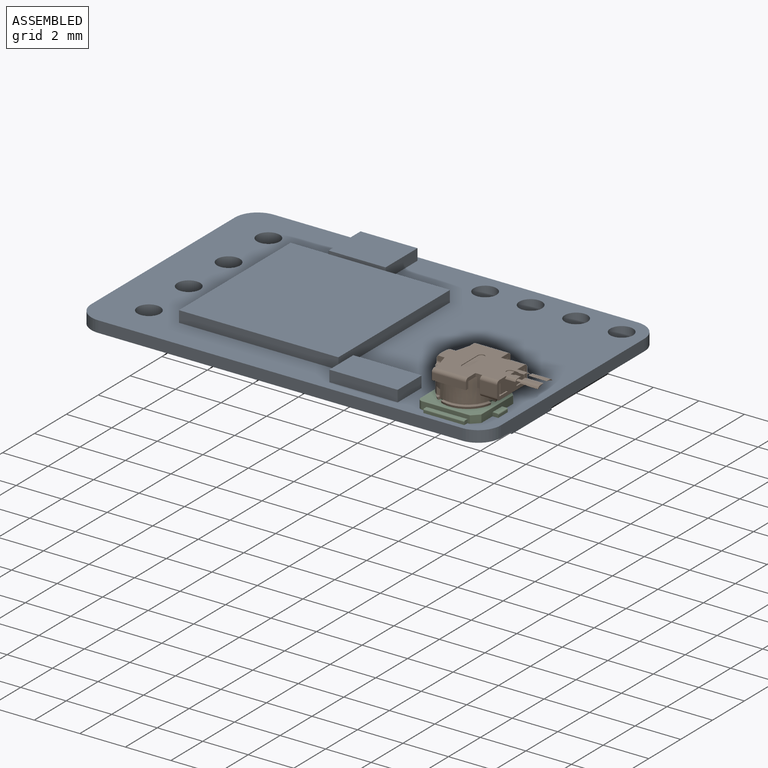
[diagram: assembled view]
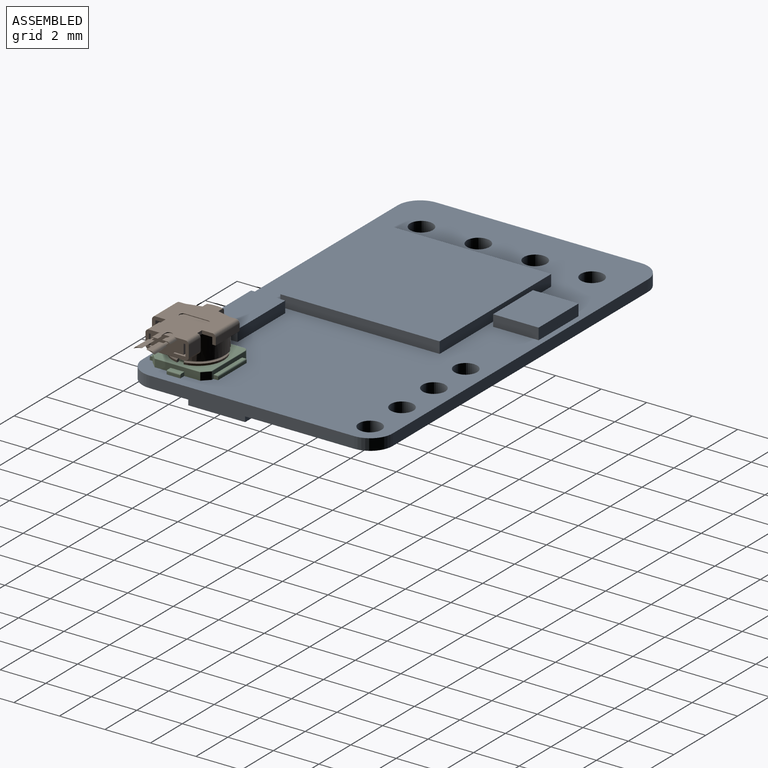
[diagram: assembled view, second angle]
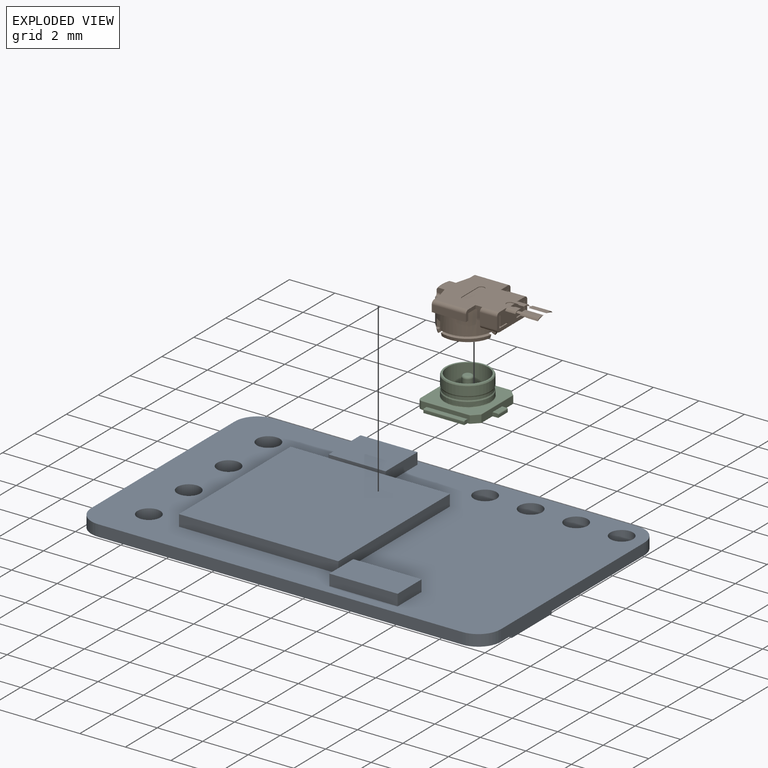
[diagram: exploded view]
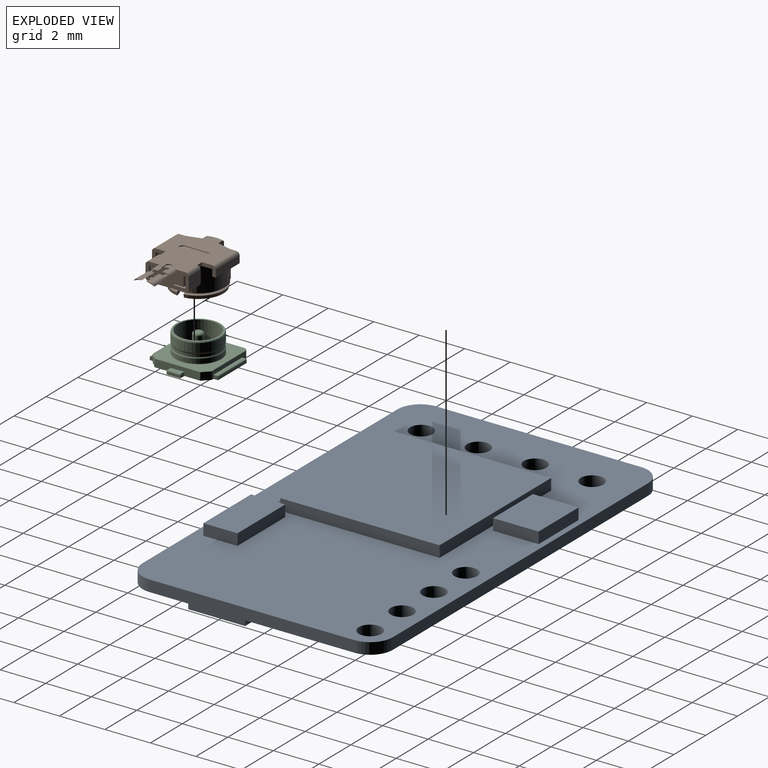
[diagram: exploded view, second angle]
ASSEMBLY  parts=3 mates=2
PART A: 53 faces, bbox 18x11x1.5 mm
  f0: plane 9x0.5mm, normal (-1,0,0), area 4.5mm2, adj f1,f15,f16,f17
  f1: cylinder r=1mm len=1mm, axis (0,0,-1), area 0.8mm2, adj f0,f2,f16,f17
  f2: plane 16x0.5mm, normal (0,-1,0), area 8mm2, adj f1,f3,f16,f17
  f3: cylinder r=1mm len=1mm, axis (0,0,-1), area 0.8mm2, adj f2,f4,f16,f17
  f4: plane 9x0.5mm, normal (1,0,0), area 4.5mm2, adj f3,f5,f16,f17
  f5: cylinder r=1mm len=1mm, axis (0,0,-1), area 0.8mm2, adj f4,f6,f16,f17
  f6: plane 16x0.5mm, normal (0,1,0), area 8mm2, adj f5,f15,f16,f17
  f7: cylinder r=0.5mm len=1mm, axis (0,0,-1), area 1.6mm2, adj f16,f17
  f8: cylinder r=0.5mm len=1mm, axis (0,0,-1), area 1.6mm2, adj f16,f17
  f9: cylinder r=0.5mm len=1mm, axis (0,0,-1), area 1.6mm2, adj f16,f17
  f10: cylinder r=0.5mm len=1mm, axis (0,0,-1), area 1.6mm2, adj f16,f17
  f11: cylinder r=0.5mm len=1mm, axis (0,0,-1), area 1.6mm2, adj f16,f17
  f12: cylinder r=0.5mm len=1mm, axis (0,0,-1), area 1.6mm2, adj f16,f17
  f13: cylinder r=0.5mm len=1mm, axis (0,0,-1), area 1.6mm2, adj f16,f17
  f14: cylinder r=0.5mm len=1mm, axis (0,0,-1), area 1.6mm2, adj f16,f17
  f15: cylinder r=1mm len=1mm, axis (0,0,-1), area 0.8mm2, adj f0,f6,f16,f17
  f16: plane 18x11mm, normal (0,0,1), area 132.4mm2, adj f0,f1,f2,f3,f4,f5,f6,f7
  f17: plane 18x11mm, normal (0,0,-1), area 141.6mm2, adj f0,f1,f2,f3,f4,f5,f6,f7
  f18: plane 7x7mm, normal (0,0,1), area 49mm2, adj f19,f20,f21,f22
  f19: plane 7x0.5mm, normal (0,-1,0), area 3.5mm2, adj f16,f18,f20,f22
  f20: plane 7x0.5mm, normal (-1,0,0), area 3.5mm2, adj f16,f18,f19,f21
  f21: plane 7x0.5mm, normal (0,1,0), area 3.5mm2, adj f16,f18,f20,f22
  f22: plane 7x0.5mm, normal (1,0,0), area 3.5mm2, adj f16,f18,f19,f21
  f23: plane 2.5x2mm, normal (0,0,1), area 5mm2, adj f24,f25,f26,f27
  f24: plane 2x0.5mm, normal (1,0,0), area 1mm2, adj f16,f23,f25,f27
  f25: plane 2.5x0.5mm, normal (0,-1,0), area 1.2mm2, adj f16,f23,f24,f26
  f26: plane 2x0.5mm, normal (-1,0,0), area 1mm2, adj f16,f23,f25,f27
  f27: plane 2.5x0.5mm, normal (0,1,0), area 1.2mm2, adj f16,f23,f24,f26
  f28: plane 3x1.5mm, normal (0,0,1), area 4.5mm2, adj f29,f30,f31,f32
  f29: plane 1.5x0.5mm, normal (1,0,0), area 0.7mm2, adj f16,f28,f30,f32
  f30: plane 3x0.5mm, normal (0,-1,0), area 1.5mm2, adj f16,f28,f29,f31
  f31: plane 1.5x0.5mm, normal (-1,0,0), area 0.7mm2, adj f16,f28,f30,f32
  f32: plane 3x0.5mm, normal (0,1,0), area 1.5mm2, adj f16,f28,f29,f31
  f33: plane 6x0.5mm, normal (0,-1,0), area 3mm2, adj f17,f34,f36,f37
  f34: plane 6x0.5mm, normal (-1,0,0), area 3mm2, adj f17,f33,f35,f37
  f35: plane 6x0.5mm, normal (0,1,0), area 3mm2, adj f17,f34,f36,f37
  f36: plane 6x0.5mm, normal (1,0,0), area 3mm2, adj f17,f33,f35,f37
  f37: plane 6x6mm, normal (0,0,-1), area 36mm2, adj f33,f34,f35,f36
  f38: plane 2x0.5mm, normal (0,-1,0), area 1mm2, adj f17,f39,f41,f42
  f39: plane 2.5x0.5mm, normal (-1,0,0), area 1.3mm2, adj f17,f38,f40,f42
  f40: plane 2x0.5mm, normal (0,1,0), area 1mm2, adj f17,f39,f41,f42
  f41: plane 2.5x0.5mm, normal (1,0,0), area 1.3mm2, adj f17,f38,f40,f42
  f42: plane 2.5x2mm, normal (0,0,-1), area 5mm2, adj f38,f39,f40,f41
  f43: plane 2x0.5mm, normal (0,-1,0), area 1mm2, adj f17,f44,f46,f47
  f44: plane 3x0.5mm, normal (-1,0,0), area 1.5mm2, adj f17,f43,f45,f47
  f45: plane 2x0.5mm, normal (0,1,0), area 1mm2, adj f17,f44,f46,f47
  f46: plane 3x0.5mm, normal (1,0,0), area 1.5mm2, adj f17,f43,f45,f47
  f47: plane 3x2mm, normal (0,0,-1), area 6mm2, adj f43,f44,f45,f46
  f48: plane 2.3x0.5mm, normal (0,-1,0), area 1.1mm2, adj f17,f49,f51,f52
  f49: plane 1x0.5mm, normal (-1,0,0), area 0.5mm2, adj f17,f48,f50,f52
  f50: plane 2.3x0.5mm, normal (0,1,0), area 1.1mm2, adj f17,f49,f51,f52
  f51: plane 1x0.5mm, normal (1,0,0), area 0.5mm2, adj f17,f48,f50,f52
  f52: plane 2.3x1mm, normal (0,0,-1), area 2.3mm2, adj f48,f49,f50,f51
PART B: 213 faces, bbox 4.7x1.5x2.8 mm
  f0: plane 0.25x0.05mm, normal (0,-0.71,0.71), area 0mm2, adj f1,f2,f6,f8
  f1: plane 0.55x0.11mm, normal (0,-0.71,-0.71), area 0.1mm2, adj f0,f6,f7,f8
  f2: plane 0.55x0.11mm, normal (0,0.6,0.8), area 0.1mm2, adj f0,f6,f8,f9
  f3: plane 0.55x0.11mm, normal (0,-0.71,0.71), area 0.1mm2, adj f4,f10,f11,f12
  f4: plane 0.25x0.05mm, normal (0,-0.71,-0.71), area 0mm2, adj f3,f5,f10,f12
  f5: plane 0.55x0.11mm, normal (0,0.6,-0.8), area 0.1mm2, adj f4,f10,f12,f13
  f6: cylinder r=0.15mm len=0.2mm, axis (0,0.71,0.71), area 0mm2, adj f0,f1,f2,f9,f18
  f7: cylinder r=0.06mm len=0.55mm, axis (-1,0,0), area 0mm2, adj f1,f18,f19,f20
  f8: cylinder r=0.15mm len=0.2mm, axis (0,0.71,0.71), area 0mm2, adj f0,f1,f2,f9,f20
  f9: plane 0.6x0.55mm, normal (0,-0.21,0.98), area 0.3mm2, adj f2,f6,f8,f17,f18,f20
  f10: cylinder r=0.15mm len=0.2mm, axis (0,0.71,-0.71), area 0mm2, adj f3,f4,f5,f13,f23
  f11: cylinder r=0.06mm len=0.55mm, axis (-1,0,0), area 0mm2, adj f3,f23,f24,f25
  f12: cylinder r=0.15mm len=0.2mm, axis (0,0.71,-0.71), area 0mm2, adj f3,f4,f5,f13,f25
  f13: plane 0.6x0.55mm, normal (0,-0.21,-0.98), area 0.3mm2, adj f5,f10,f12,f15,f23,f25
  f14: plane 0.1x0.06mm, normal (-1,0,0), area 0mm2, adj f22,f28,f29,f30
  f15: cylinder r=0.1mm len=0.55mm, axis (-1,0,0), area 0.1mm2, adj f13,f23,f25,f30
  f16: plane 0.1x0.06mm, normal (-1,0,0), area 0mm2, adj f21,f26,f27,f31
  f17: cylinder r=0.1mm len=0.55mm, axis (-1,0,0), area 0.1mm2, adj f9,f18,f20,f31
  f18: plane 0.74x0.23mm, normal (-1,0,0), area 0.1mm2, adj f6,f7,f9,f17,f19,f31,f32,f33
  f19: plane 0.59x0.55mm, normal (0,0.21,-0.98), area 0.3mm2, adj f7,f18,f20,f33
  f20: plane 0.74x0.23mm, normal (1,0,0), area 0.1mm2, adj f7,f8,f9,f17,f19,f21,f31,f33
  f21: plane 0.1x0.1mm, normal (0,0,1), area 0mm2, adj f16,f20,f26,f31,f33
  f22: plane 0.1x0.1mm, normal (0,0,-1), area 0mm2, adj f14,f23,f29,f30,f33
  f23: plane 0.74x0.23mm, normal (1,0,0), area 0.1mm2, adj f10,f11,f13,f15,f22,f24,f30,f33
  f24: plane 0.59x0.55mm, normal (0,0.21,0.98), area 0.3mm2, adj f11,f23,f25,f33
  f25: plane 0.74x0.23mm, normal (-1,0,0), area 0.1mm2, adj f11,f12,f13,f15,f24,f30,f33,f34
  f26: plane 0.07x0.06mm, normal (0,1,0), area 0mm2, adj f16,f21,f27,f38
  f27: plane 0.1x0.07mm, normal (0,0,-1), area 0mm2, adj f16,f26,f31,f38
  f28: plane 0.1x0.07mm, normal (0,0,1), area 0mm2, adj f14,f29,f30,f38
  f29: plane 0.07x0.06mm, normal (0,1,0), area 0mm2, adj f14,f22,f28,f38
  f30: plane 0.67x0.16mm, normal (0,-1,0), area 0.1mm2, adj f14,f15,f22,f23,f25,f28,f34,f35
  f31: plane 0.67x0.16mm, normal (0,-1,0), area 0.1mm2, adj f16,f17,f18,f20,f21,f27,f32,f38
  f32: plane 0.1x0.03mm, normal (0,0,1), area 0mm2, adj f18,f31,f33,f42
  f33: plane 0.6x0.6mm, normal (0,-1,0), area 0.4mm2, adj f18,f19,f20,f21,f22,f23,f24,f25
  f34: plane 0.1x0.03mm, normal (0,0,-1), area 0mm2, adj f25,f30,f33,f42
  f35: cylinder r=0.05mm len=0.85mm, axis (0,-1,0), area 0.1mm2, adj f30,f36,f42,f43
  f36: plane 0.85x0.5mm, normal (0,0,1), area 0.4mm2, adj f30,f35,f37,f43
  f37: cylinder r=0.05mm len=0.85mm, axis (0,-1,0), area 0.1mm2, adj f30,f36,f38,f43
  f38: plane 0.85x0.8mm, normal (-1,0,0), area 0.6mm2, adj f26,f27,f28,f29,f30,f31,f33,f37
  f39: cylinder r=0.05mm len=0.85mm, axis (0,-1,0), area 0.1mm2, adj f31,f38,f40,f43
  f40: plane 0.85x0.5mm, normal (0,0,-1), area 0.4mm2, adj f31,f39,f41,f43
  f41: cylinder r=0.05mm len=0.85mm, axis (0,-1,0), area 0.1mm2, adj f31,f40,f42,f43
  f42: plane 0.85x0.8mm, normal (1,0,0), area 0.6mm2, adj f30,f31,f32,f33,f34,f35,f41,f43
  f43: plane 1.25x1.25mm, normal (0,-1,0), area 0.7mm2, adj f35,f36,f37,f38,f39,f40,f41,f42
  f44: cone r=0mm half-angle=45deg, axis (0,1,0), area 0.9mm2, adj f43,f45
  f45: cylinder r=0.78mm len=1.55mm, axis (0,-1,0), area 2.9mm2, adj f44,f50,f51
  f46: plane 0.6x0.15mm, normal (0,-1,0), area 0.1mm2, adj f47,f57
  f47: cylinder r=0.48mm len=0.6mm, axis (0,1,0), area 0.1mm2, adj f46,f48,f57
  f48: plane 0.8x0.16mm, normal (0,-1,0), area 0mm2, adj f47,f49,f57
  f49: cylinder r=0.73mm len=0.8mm, axis (0,-1,0), area 0.1mm2, adj f48,f50,f57
  f50: plane 2.05x1.96mm, normal (0,-1,0), area 1.2mm2, adj f45,f49,f51,f57,f63
  f51: cylinder r=0.2mm len=0.3mm, axis (-1,0,0), area 0.1mm2, adj f45,f50,f63
  f52: torus R=1.08mm, axis (0,1,0), area 0.1mm2, adj f53,f78,f79,f80
  f53: cone r=0mm half-angle=71.9deg, axis (0,-1,0), area 0.2mm2, adj f52,f54,f78,f80
  f54: cone r=0mm half-angle=14.4deg, axis (0,1,0), area 0.3mm2, adj f53,f55,f78,f80
  f55: cone r=0mm half-angle=71.9deg, axis (0,-1,0), area 0.2mm2, adj f54,f56,f78,f80
  f56: torus R=1.08mm, axis (0,-1,0), area 0.8mm2, adj f55,f57,f78,f80
  f57: cylinder r=1.03mm len=2.05mm, axis (0,-1,0), area 1.6mm2, adj f46,f47,f48,f49,f50,f56,f61,f63
  f58: cone r=0mm half-angle=71.9deg, axis (0,-1,0), area 0.2mm2, adj f59,f62,f82,f86
  f59: cone r=0mm half-angle=14.4deg, axis (0,1,0), area 0.3mm2, adj f58,f60,f82,f86
  f60: cone r=0mm half-angle=71.9deg, axis (0,-1,0), area 0.2mm2, adj f59,f61,f82,f86
  f61: torus R=1.08mm, axis (0,1,0), area 0.8mm2, adj f57,f60,f63,f82,f86
  f62: revolved ~2.14x2.14mm, area 0.6mm2, adj f58,f82,f85,f86
  f63: cylinder r=1.03mm len=2.05mm, axis (0,-1,0), area 1.6mm2, adj f50,f51,f57,f61,f64,f86,f87,f88
  f64: torus R=1.08mm, axis (0,-1,0), area 0.8mm2, adj f57,f63,f65,f76,f88
  f65: cone r=0mm half-angle=71.9deg, axis (0,-1,0), area 0.2mm2, adj f64,f66,f76,f88
  f66: cone r=0mm half-angle=14.4deg, axis (0,1,0), area 0.3mm2, adj f65,f67,f76,f88
  f67: cone r=0mm half-angle=71.9deg, axis (0,-1,0), area 0.2mm2, adj f66,f68,f76,f88
  f68: torus R=1.08mm, axis (0,1,0), area 0.1mm2, adj f67,f76,f88,f89
  f69: plane 0.15x0.05mm, normal (0,0,1), area 0mm2, adj f92,f100,f101,f103
  f70: plane 0.15x0.05mm, normal (0,0,-1), area 0mm2, adj f95,f96,f97,f124
  f71: plane 0.51x0.15mm, normal (0,1,0), area 0.1mm2, adj f73,f126
  f72: plane 0.51x0.15mm, normal (0,-1,0), area 0.1mm2, adj f73,f126
  f73: cylinder r=0.33mm len=0.51mm, axis (0,1,0), area 0.1mm2, adj f71,f72,f126
  f74: cylinder r=0.1mm len=0.18mm, axis (-1,0,0), area 0mm2, adj f114,f117,f118,f126
  f75: cylinder r=0.1mm len=0.17mm, axis (-1,0,0), area 0mm2, adj f109,f113,f126
  f76: plane 0.6x0.24mm, normal (-0.87,0,-0.5), area 0.1mm2, adj f57,f64,f65,f66,f67,f68,f77,f89
  f77: plane 0.34x0.28mm, normal (0,-1,0), area 0mm2, adj f57,f76,f78,f126
  f78: plane 0.6x0.24mm, normal (0.87,0,0.5), area 0.1mm2, adj f52,f53,f54,f55,f56,f57,f77,f79
  f79: cone r=0mm half-angle=71.9deg, axis (0,1,0), area 0.2mm2, adj f52,f78,f80,f126
  f80: plane 0.6x0.24mm, normal (0.87,0,-0.5), area 0.1mm2, adj f52,f53,f54,f55,f56,f57,f79,f81
  f81: plane 0.34x0.28mm, normal (0,-1,0), area 0mm2, adj f57,f80,f82,f126
  f82: plane 0.6x0.24mm, normal (-0.87,0,0.5), area 0.1mm2, adj f57,f58,f59,f60,f61,f62,f81,f85
  f83: cone r=0mm half-angle=33deg, axis (0,-1,0), area 0mm2, adj f84,f126,f128
  f84: plane 0.47x0.1mm, normal (0,1,0), area 0mm2, adj f83,f126,f128
  f85: cone r=0mm half-angle=71.9deg, axis (0,1,0), area 0.2mm2, adj f62,f82,f86,f126,f128
  f86: plane 0.6x0.28mm, normal (0,0,1), area 0.1mm2, adj f58,f59,f60,f61,f62,f63,f85,f87
  f87: plane 0.3x0.16mm, normal (0,-1,0), area 0mm2, adj f63,f86,f88,f128
  f88: plane 0.6x0.28mm, normal (0,0,-1), area 0.1mm2, adj f63,f64,f65,f66,f67,f68,f87,f89
  f89: cone r=0mm half-angle=71.9deg, axis (0,1,0), area 0.2mm2, adj f68,f76,f88,f126,f128
  f90: plane 0.47x0.1mm, normal (0,1,0), area 0mm2, adj f91,f126,f128
  f91: cone r=0mm half-angle=33deg, axis (0,-1,0), area 0mm2, adj f90,f126,f128
  f92: plane 0.68x0.28mm, normal (0,-1,0), area 0mm2, adj f69,f93,f100,f103,f104,f128
  f93: plane 0.61x0.45mm, normal (0,0,1), area 0.3mm2, adj f92,f99,f100,f128
  f94: plane 0.61x0.45mm, normal (0,0,-1), area 0.3mm2, adj f95,f97,f98,f128
  f95: plane 0.68x0.28mm, normal (0,-1,0), area 0mm2, adj f70,f94,f97,f123,f124,f128
  f96: cylinder r=0.15mm len=0.14mm, axis (-1,0,0), area 0mm2, adj f70,f97,f124,f132
  f97: plane 0.45x0.4mm, normal (1,0,0), area 0.1mm2, adj f70,f94,f95,f96,f98,f132
  f98: plane 0.61x0.4mm, normal (0,-1,0), area 0.2mm2, adj f94,f97,f128,f132
  f99: plane 0.61x0.4mm, normal (0,-1,0), area 0.2mm2, adj f93,f100,f128,f132
  f100: plane 0.45x0.4mm, normal (1,0,0), area 0.1mm2, adj f69,f92,f93,f99,f101,f132
  f101: cylinder r=0.15mm len=0.14mm, axis (-1,0,0), area 0mm2, adj f69,f100,f103,f132
  f102: plane 0.21x0.05mm, normal (-1,0,0), area 0mm2, adj f132,f135,f136,f137
  f103: plane 0.45x0.42mm, normal (-1,0,0), area 0.1mm2, adj f69,f92,f101,f104,f132,f137
  f104: plane 0.68x0.45mm, normal (0,0,-1), area 0.3mm2, adj f92,f103,f128,f137
  f105: plane 1.5x0.3mm, normal (0,0,1), area 0.5mm2, adj f106,f149,f150,f151
  f106: plane 1.5x0.15mm, normal (0,-1,0), area 0.2mm2, adj f105,f107,f149,f151
  f107: plane 1.5x0.3mm, normal (0,0,-1), area 0.5mm2, adj f106,f139,f149,f151
  f108: plane 0.18x0.13mm, normal (0,1,0), area 0mm2, adj f109,f126,f151,f152
  f109: plane 0.45x0.42mm, normal (0,0.94,-0.34), area 0.1mm2, adj f75,f108,f110,f126,f152
  f110: cylinder r=1.03mm len=0.32mm, axis (0,-1,0), area 0mm2, adj f109,f111,f152
  f111: plane 0.44x0.31mm, normal (0,1,0), area 0.1mm2, adj f110,f112,f152,f153
  f112: cylinder r=1.03mm len=0.12mm, axis (0,-1,0), area 0mm2, adj f111,f113,f153
  f113: cylinder r=0.1mm len=0.21mm, axis (-1,0,0), area 0mm2, adj f75,f112,f126,f153
  f114: cylinder r=0.1mm len=0.2mm, axis (-1,0,0), area 0mm2, adj f74,f115,f126,f155
  f115: cylinder r=1.03mm len=0.1mm, axis (0,-1,0), area 0mm2, adj f114,f116,f155
  f116: plane 0.44x0.31mm, normal (0,1,0), area 0.1mm2, adj f115,f117,f155,f156
  f117: cylinder r=1.03mm len=0.34mm, axis (0,-1,0), area 0mm2, adj f74,f116,f118,f156
  f118: plane 0.45x0.41mm, normal (0,0.94,0.34), area 0.1mm2, adj f74,f117,f119,f126,f156
  f119: plane 0.18x0.13mm, normal (0,1,0), area 0mm2, adj f118,f126,f156,f157
  f120: plane 1.5x0.3mm, normal (0,0,-1), area 0.5mm2, adj f121,f157,f158,f159
  f121: plane 1.5x0.15mm, normal (0,-1,0), area 0.2mm2, adj f120,f127,f157,f159
  f122: plane 1.3x0.3mm, normal (0,1,0), area 0.4mm2, adj f162,f163,f164,f165
  f123: plane 0.68x0.45mm, normal (0,0,1), area 0.3mm2, adj f95,f124,f128,f171
  f124: plane 0.45x0.42mm, normal (-1,0,0), area 0.1mm2, adj f70,f95,f96,f123,f132,f171
  f125: plane 0.21x0.05mm, normal (-1,0,0), area 0mm2, adj f132,f169,f170,f171
  f126: cylinder r=1.18mm len=2.35mm, axis (0,-1,0), area 3.6mm2, adj f71,f72,f73,f74,f75,f76,f77,f78
  f127: plane 1.5x0.3mm, normal (0,0,1), area 0.5mm2, adj f121,f157,f159,f173
  f128: cylinder r=1.18mm len=2.35mm, axis (0,-1,0), area 3.2mm2, adj f83,f84,f85,f86,f87,f88,f89,f90
  f129: plane 0.8x0.15mm, normal (-1,0,0), area 0.1mm2, adj f130,f160,f172,f176,f177,f178
  f130: plane 0.77x0.2mm, normal (-0.97,0,0.25), area 0.1mm2, adj f129,f132,f170,f179,f180
  f131: plane 0.13x0.06mm, normal (-1,0,0), area 0mm2, adj f132,f180,f181,f182
  f132: cylinder r=0.2mm len=0.74mm, axis (-1,0,0), area 0.2mm2, adj f96,f97,f98,f99,f100,f101,f102,f103
  f133: plane 0.77x0.2mm, normal (-0.97,0,-0.25), area 0.1mm2, adj f132,f134,f135,f182,f183
  f134: plane 0.8x0.15mm, normal (-1,0,0), area 0.1mm2, adj f133,f140,f141,f147,f148,f184
  f135: plane 0.75x0.71mm, normal (0,1,0), area 0.5mm2, adj f102,f132,f133,f136,f140,f210
  f136: cylinder r=0.33mm len=0.05mm, axis (-1,0,0), area 0mm2, adj f102,f135,f137,f210
  f137: plane 1.03x0.57mm, normal (0,-1,0), area 0.2mm2, adj f102,f103,f104,f128,f132,f136,f138,f210
  f138: plane 1.03x0.45mm, normal (0,0,1), area 0.5mm2, adj f128,f137,f139,f210
  f139: plane 2.55x0.53mm, normal (0,-1,0), area 0.3mm2, adj f107,f126,f128,f138,f140,f148,f149,f151
  f140: plane 0.75x0.5mm, normal (0,0,-1), area 0.4mm2, adj f134,f135,f139,f210
  f141: plane 0.75x0.5mm, normal (0,0,1), area 0.4mm2, adj f134,f147,f184,f210
  f142: cylinder r=0.15mm len=0.4mm, axis (1,0,0), area 0.1mm2, adj f143,f189,f190,f191
  f143: cylinder r=0.15mm len=0.26mm, axis (1,0,0.04), area 0mm2, adj f142,f144,f188,f191
  f144: cylinder r=0.15mm len=0.15mm, axis (1,0,0), area 0mm2, adj f143,f187,f191,f192
  f145: plane 0.3x0.25mm, normal (0,1,0), area 0.1mm2, adj f161,f196,f197,f210
  f146: cylinder r=0.15mm len=0.45mm, axis (1,0,0), area 0.1mm2, adj f185,f194,f199,f210
  f147: cylinder r=0.15mm len=0.75mm, axis (-1,0,0), area 0.2mm2, adj f134,f141,f199,f210
  f148: plane 0.3x0.15mm, normal (0,0,1), area 0mm2, adj f134,f139,f149,f199
  f149: plane 0.6x0.45mm, normal (1,0,0), area 0.1mm2, adj f105,f106,f107,f139,f148,f150,f199
  f150: cylinder r=0.15mm len=1.5mm, axis (-1,0,0), area 0.4mm2, adj f105,f149,f151,f199
  f151: plane 0.45x0.42mm, normal (-1,0,0), area 0.1mm2, adj f105,f106,f107,f108,f139,f150,f152,f199
  f152: plane 0.63x0.3mm, normal (-0.97,0,0.26), area 0.2mm2, adj f108,f109,f110,f111,f151,f153,f199
  f153: plane 0.37x0.31mm, normal (0,0,1), area 0.1mm2, adj f111,f112,f113,f126,f152,f154,f199
  f154: torus R=1.07mm, axis (0,-1,0), area 0.1mm2, adj f126,f153,f155,f199
  f155: plane 0.37x0.31mm, normal (0,0,-1), area 0.1mm2, adj f114,f115,f116,f126,f154,f156,f199
  f156: plane 0.63x0.3mm, normal (-0.97,0,-0.26), area 0.2mm2, adj f116,f117,f118,f119,f155,f157,f199
  f157: plane 0.45x0.42mm, normal (-1,0,0), area 0.1mm2, adj f119,f120,f121,f127,f156,f158,f173,f199
  f158: cylinder r=0.15mm len=1.5mm, axis (-1,0,0), area 0.4mm2, adj f120,f157,f159,f199
  f159: plane 0.6x0.45mm, normal (1,0,0), area 0.1mm2, adj f120,f121,f127,f158,f160,f173,f199
  f160: plane 0.3x0.15mm, normal (0,0,-1), area 0mm2, adj f129,f159,f173,f199
  f161: cylinder r=0.15mm len=0.3mm, axis (0,1,0), area 0mm2, adj f145,f196,f197,f199
  f162: cylinder r=0.15mm len=0.3mm, axis (0,1,0), area 0mm2, adj f122,f163,f165,f199
  f163: plane 1x0.03mm, normal (1,0,0), area 0mm2, adj f122,f162,f164,f199
  f164: cylinder r=0.15mm len=0.3mm, axis (0,1,0), area 0mm2, adj f122,f163,f165,f199
  f165: plane 1x0.03mm, normal (-1,0,0), area 0mm2, adj f122,f162,f164,f199
  f166: cylinder r=0.15mm len=0.4mm, axis (-1,0,0), area 0.1mm2, adj f167,f201,f202,f203
  f167: cylinder r=0.15mm len=0.26mm, axis (-1,0,0.04), area 0mm2, adj f166,f168,f201,f204
  f168: cylinder r=0.15mm len=0.15mm, axis (-1,0,0), area 0mm2, adj f167,f201,f205,f206
  f169: cylinder r=0.33mm len=0.05mm, axis (-1,0,0), area 0mm2, adj f125,f170,f171,f210
  f170: plane 0.75x0.71mm, normal (0,1,0), area 0.5mm2, adj f125,f130,f132,f169,f172,f210
  f171: plane 1.03x0.57mm, normal (0,-1,0), area 0.2mm2, adj f123,f124,f125,f128,f132,f169,f174,f210
  f172: plane 0.75x0.5mm, normal (0,0,1), area 0.4mm2, adj f129,f170,f173,f210
  f173: plane 2.55x0.53mm, normal (0,-1,0), area 0.3mm2, adj f126,f127,f128,f157,f159,f160,f172,f174
  f174: plane 1.03x0.45mm, normal (0,0,-1), area 0.5mm2, adj f128,f171,f173,f210
  f175: cylinder r=0.15mm len=0.45mm, axis (1,0,0), area 0.1mm2, adj f199,f208,f209,f210
  f176: cylinder r=0.15mm len=0.75mm, axis (-1,0,0), area 0.2mm2, adj f129,f177,f199,f210
  f177: plane 0.75x0.5mm, normal (0,0,-1), area 0.4mm2, adj f129,f176,f178,f210
  f178: cylinder r=0.15mm len=0.75mm, axis (-1,0,0), area 0.2mm2, adj f129,f177,f179,f210
  f179: plane 0.77x0.75mm, normal (0,-1,0), area 0.5mm2, adj f130,f178,f180,f210
  f180: plane 0.55x0.13mm, normal (0,0,1), area 0.1mm2, adj f130,f131,f132,f179,f181,f210
  f181: cylinder r=0.33mm len=0.06mm, axis (-1,0,0), area 0mm2, adj f131,f180,f182,f210
  f182: plane 0.55x0.13mm, normal (0,0,-1), area 0.1mm2, adj f131,f132,f133,f181,f183,f210
  f183: plane 0.77x0.75mm, normal (0,-1,0), area 0.5mm2, adj f133,f182,f184,f210
  f184: cylinder r=0.15mm len=0.75mm, axis (-1,0,0), area 0.2mm2, adj f134,f141,f183,f210
  f185: cylinder r=0.5mm len=0.45mm, axis (1,0,0), area 0mm2, adj f146,f194,f210,f212
  f186: cylinder r=0.15mm len=0.2mm, axis (-1,0,0), area 0mm2, adj f192,f193,f194,f212
  f187: cylinder r=0.5mm len=0.15mm, axis (1,0,0), area 0mm2, adj f144,f188,f192,f212
  f188: bspline ~0.25x0.05mm, area 0mm2, adj f143,f187,f189,f212
  f189: cylinder r=0.55mm len=0.4mm, axis (1,0,0), area 0mm2, adj f142,f188,f190,f212
  f190: plane 0.36x0.11mm, normal (1,0,0), area 0mm2, adj f142,f189,f191,f212
  f191: plane 0.8x0.21mm, normal (0,1,0), area 0.2mm2, adj f142,f143,f144,f190,f192,f212
  f192: plane 0.34x0.1mm, normal (-1,0,0), area 0mm2, adj f144,f186,f187,f191,f193,f212
  f193: plane 0.2x0.02mm, normal (0,1,0), area 0mm2, adj f186,f192,f194,f212
  f194: plane 0.34x0.1mm, normal (1,0,0), area 0mm2, adj f146,f185,f186,f193,f199,f212
  f195: cylinder r=0.15mm len=0.12mm, axis (0,1,0), area 0mm2, adj f196,f199,f212
  f196: plane 0.2x0.03mm, normal (0,0,-1), area 0mm2, adj f145,f161,f195,f199,f210,f212
  f197: plane 0.2x0.03mm, normal (0,0,1), area 0mm2, adj f145,f161,f198,f199,f210,f211
  f198: cylinder r=0.15mm len=0.12mm, axis (0,1,0), area 0mm2, adj f197,f199,f211
  f199: plane 3.48x2.5mm, normal (0,1,0), area 5.6mm2, adj f146,f147,f148,f149,f150,f151,f152,f153
  f200: plane 0.2x0.02mm, normal (0,1,0), area 0mm2, adj f206,f207,f208,f211
  f201: plane 0.8x0.21mm, normal (0,1,0), area 0.2mm2, adj f166,f167,f168,f202,f206,f211
  f202: plane 0.36x0.11mm, normal (1,0,0), area 0mm2, adj f166,f201,f203,f211
  f203: cylinder r=0.55mm len=0.4mm, axis (1,0,0), area 0mm2, adj f166,f202,f204,f211
  f204: bspline ~0.25x0.05mm, area 0mm2, adj f167,f203,f205,f211
  f205: cylinder r=0.5mm len=0.15mm, axis (1,0,0), area 0mm2, adj f168,f204,f206,f211
  f206: plane 0.34x0.1mm, normal (-1,0,0), area 0mm2, adj f168,f200,f201,f205,f207,f211
  f207: cylinder r=0.15mm len=0.2mm, axis (-1,0,0), area 0mm2, adj f200,f206,f208,f211
  f208: plane 0.34x0.1mm, normal (1,0,0), area 0mm2, adj f175,f199,f200,f207,f209,f211
  f209: cylinder r=0.5mm len=0.45mm, axis (1,0,0), area 0mm2, adj f175,f208,f210,f211
  f210: plane 1.9x0.8mm, normal (1,0,0), area 1.4mm2, adj f135,f136,f137,f138,f139,f140,f141,f145
  f211: cylinder r=1mm len=1.45mm, axis (1,0,0), area 0.5mm2, adj f197,f198,f199,f200,f201,f202,f203,f204
  f212: cylinder r=1mm len=1.45mm, axis (1,0,0), area 0.5mm2, adj f185,f186,f187,f188,f189,f190,f191,f192
PART C: 62 faces, bbox 3.1x1.3x3 mm
  f0: cylinder r=0.05mm len=0.6mm, axis (0,0,-1), area 0mm2, adj f4,f8,f9,f10
  f1: cylinder r=0.05mm len=1.8mm, axis (-1,0,0), area 0.1mm2, adj f5,f11,f12,f13
  f2: cylinder r=0.05mm len=0.6mm, axis (0,0,1), area 0mm2, adj f6,f14,f15,f16
  f3: cylinder r=0.05mm len=1.8mm, axis (1,0,0), area 0.1mm2, adj f7,f17,f18,f19
  f4: plane 0.6x0.12mm, normal (-1,0,0), area 0.1mm2, adj f0,f8,f10,f20
  f5: plane 1.8x0.12mm, normal (0,0,1), area 0.2mm2, adj f1,f11,f12,f20
  f6: plane 0.6x0.12mm, normal (1,0,0), area 0.1mm2, adj f2,f14,f15,f20
  f7: plane 1.8x0.12mm, normal (0,0,-1), area 0.2mm2, adj f3,f18,f19,f20
  f8: plane 0.25x0.17mm, normal (0,0,-1), area 0mm2, adj f0,f4,f9,f20,f21
  f9: plane 0.6x0.2mm, normal (0,1,0), area 0.1mm2, adj f0,f8,f10,f21
  f10: plane 0.25x0.17mm, normal (0,0,1), area 0mm2, adj f0,f4,f9,f20,f21
  f11: plane 0.2x0.17mm, normal (-1,0,0), area 0mm2, adj f1,f5,f13,f20,f23
  f12: plane 0.2x0.17mm, normal (1,0,0), area 0mm2, adj f1,f5,f13,f20,f23
  f13: plane 1.8x0.15mm, normal (0,1,0), area 0.3mm2, adj f1,f11,f12,f23
  f14: plane 0.25x0.17mm, normal (0,0,1), area 0mm2, adj f2,f6,f16,f20,f25
  f15: plane 0.25x0.17mm, normal (0,0,-1), area 0mm2, adj f2,f6,f16,f20,f25
  f16: plane 0.6x0.2mm, normal (0,1,0), area 0.1mm2, adj f2,f14,f15,f25
  f17: plane 1.8x0.15mm, normal (0,1,0), area 0.3mm2, adj f3,f18,f19,f27
  f18: plane 0.2x0.17mm, normal (-1,0,0), area 0mm2, adj f3,f7,f17,f20,f27
  f19: plane 0.2x0.17mm, normal (1,0,0), area 0mm2, adj f3,f7,f17,f20,f27
  f20: plane 3.1x3mm, normal (0,-1,0), area 7.7mm2, adj f4,f5,f6,f7,f8,f10,f11,f12
  f21: plane 2.2x0.33mm, normal (-1,0,0), area 0.6mm2, adj f8,f9,f10,f20,f22,f28,f29
  f22: cylinder r=0.2mm len=0.33mm, axis (0,-1,0), area 0.1mm2, adj f20,f21,f23,f30
  f23: plane 2.1x0.33mm, normal (0,0,1), area 0.4mm2, adj f11,f12,f13,f20,f22,f24,f31
  f24: plane 0.33x0.3mm, normal (0.71,0,0.71), area 0.1mm2, adj f20,f23,f25,f32
  f25: plane 2x0.33mm, normal (1,0,0), area 0.6mm2, adj f14,f15,f16,f20,f24,f26,f33
  f26: plane 0.33x0.3mm, normal (0.71,0,-0.71), area 0.1mm2, adj f20,f25,f27,f34
  f27: plane 2.1x0.33mm, normal (0,0,-1), area 0.4mm2, adj f17,f18,f19,f20,f26,f28,f35
  f28: cylinder r=0.2mm len=0.33mm, axis (0,-1,0), area 0.1mm2, adj f20,f21,f27,f36
  f29: cylinder r=0.02mm len=2.2mm, axis (0,0,-1), area 0.1mm2, adj f21,f30,f36,f37
  f30: revolved ~0.2x0.2mm, area 0mm2, adj f22,f29,f31,f37
  f31: cylinder r=0.02mm len=2.1mm, axis (-1,0,0), area 0.1mm2, adj f23,f30,f32,f37
  f32: cylinder r=0.02mm len=0.31mm, axis (-0.71,0,0.71), area 0mm2, adj f24,f31,f33,f37
  f33: cylinder r=0.02mm len=2mm, axis (0,0,1), area 0.1mm2, adj f25,f32,f34,f37
  f34: cylinder r=0.02mm len=0.31mm, axis (0.71,0,0.71), area 0mm2, adj f26,f33,f35,f37
  f35: cylinder r=0.02mm len=2.1mm, axis (1,0,0), area 0.1mm2, adj f27,f34,f36,f37
  f36: revolved ~0.2x0.2mm, area 0mm2, adj f28,f29,f35,f37
  f37: plane 2.56x2.56mm, normal (0,1,0), area 3.2mm2, adj f29,f30,f31,f32,f33,f34,f35,f36
  f38: revolved ~2.04x1.02mm, area 0.1mm2, adj f37,f39,f40
  f39: torus R=1.02mm, axis (0,1,0), area 0.1mm2, adj f37,f38,f40
  f40: cylinder r=1mm len=2mm, axis (0,-1,0), area 1.3mm2, adj f38,f39,f41
  f41: cone r=0mm half-angle=26.6deg, axis (0,-1,0), area 0.3mm2, adj f40,f42
  f42: cylinder r=0.97mm len=1.95mm, axis (0,-1,0), area 0.8mm2, adj f41,f43
  f43: cone r=0mm half-angle=26.6deg, axis (0,1,0), area 0.3mm2, adj f42,f44
  f44: cylinder r=1mm len=2mm, axis (0,-1,0), area 2.5mm2, adj f43,f45
  f45: cone r=0mm half-angle=26.6deg, axis (0,-1,0), area 0.3mm2, adj f44,f47
  f46: plane 1.68x0.58mm, normal (0,1,0), area 0.6mm2, adj f49,f50,f51,f52
  f47: plane 1.95x1.95mm, normal (0,1,0), area 0.4mm2, adj f45,f52
  f48: plane 1.68x0.58mm, normal (0,1,0), area 0.6mm2, adj f52,f53,f54,f55
  f49: plane 0.49x0.1mm, normal (-1,0,0), area 0mm2, adj f46,f50,f52,f57
  f50: cylinder r=0.47mm len=0.7mm, axis (0,-1,0), area 0.1mm2, adj f46,f49,f51,f57
  f51: plane 0.49x0.1mm, normal (-1,0,0), area 0mm2, adj f46,f50,f52,f57
  f52: cylinder r=0.9mm len=1.8mm, axis (0,1,0), area 5mm2, adj f46,f47,f48,f49,f51,f53,f55,f57
  f53: plane 0.49x0.1mm, normal (1,0,0), area 0mm2, adj f48,f52,f54,f57
  f54: cylinder r=0.47mm len=0.7mm, axis (0,-1,0), area 0.1mm2, adj f48,f53,f55,f57
  f55: plane 0.49x0.1mm, normal (1,0,0), area 0mm2, adj f48,f52,f54,f57
  f56: torus R=0.13mm, axis (0,1,0), area 0.1mm2, adj f58,f59,f60,f61
  f57: plane 1.8x0.94mm, normal (0,1,0), area 1.1mm2, adj f49,f50,f51,f52,f53,f54,f55,f58
  f58: cylinder r=0.23mm len=0.65mm, axis (0,-1,0), area 0.9mm2, adj f56,f57,f61
  f59: plane 0.25x0.13mm, normal (0,1,0), area 0mm2, adj f56,f60,f61
  f60: plane 0.25x0.13mm, normal (0,1,0), area 0mm2, adj f56,f59,f61
  f61: torus R=0.13mm, axis (0,1,0), area 0.1mm2, adj f56,f58,f59,f60
PLACE A t=(-0.03,0.13,7.54)mm
PLACE B rot(axis=(1,0,0),90deg) t=(-3.59,-9.53,5.74)mm
PLACE C rot(axis=(1,0,0),90deg) t=(-3.59,-9.53,6.84)mm
MATE fastened B.f154 <-> C.f61  axis (0,0,-1) through (6.98,-3.62,8.49)mm
MATE fastened A.f3 <-> C.f20  axis (0,0,1) through (7.97,-4.37,8.04)mm
